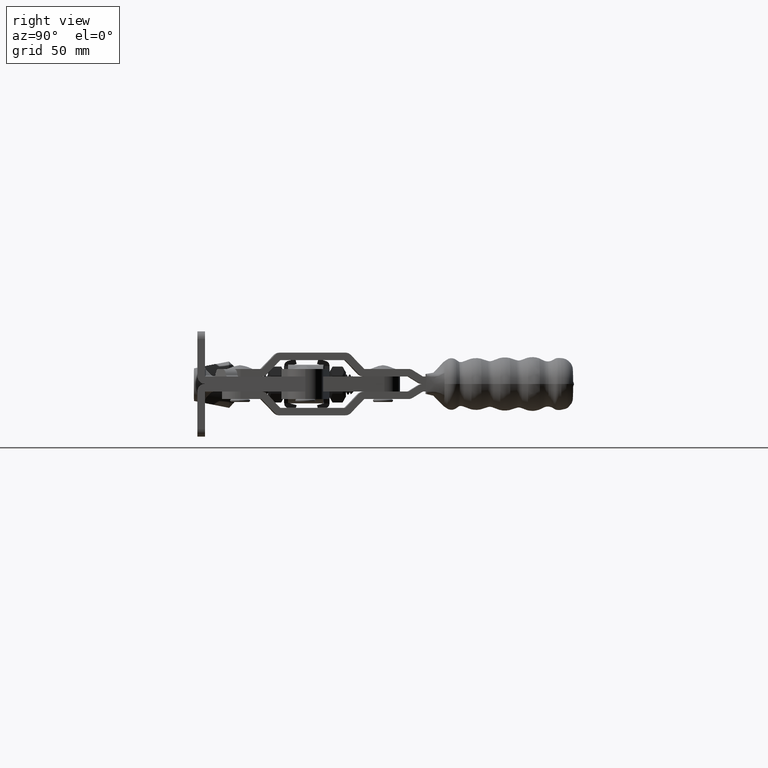
[diagram: clean part render]
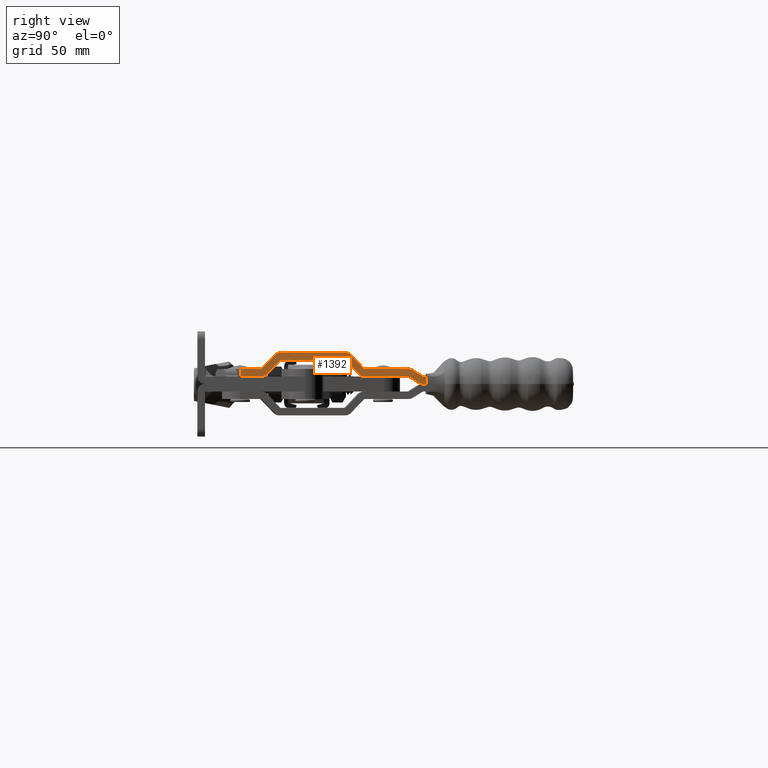
[diagram: same view with one face highlighted and labeled with its STEP entity id]
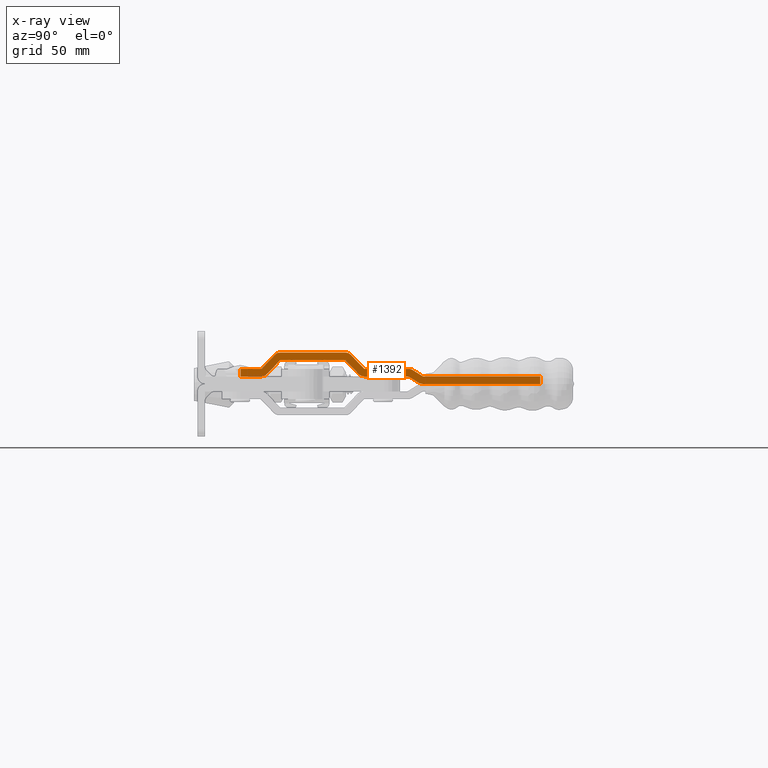
[diagram: x-ray of the same camera — body ghosted, the highlighted face saturated]
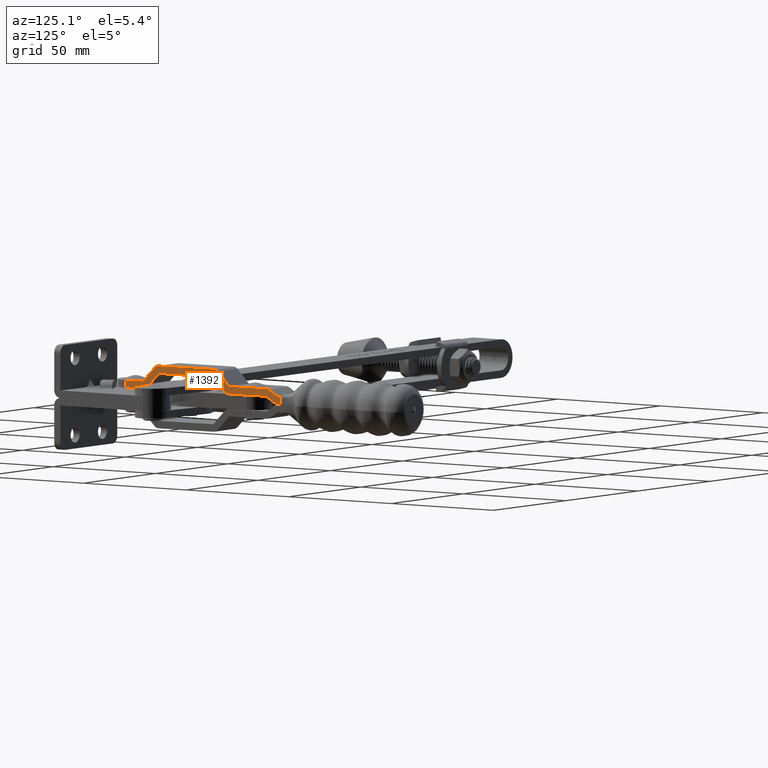
[diagram: same view with one face highlighted and labeled with its STEP entity id]
A machine part, right view. The second image highlights one B-rep face of the part: STEP entity #1392.
The next image is the same camera in x-ray: the body ghosted, the highlighted face saturated — about 0% of this face is hidden behind the body in this view.
A second angle (auxiliary view) of the same face is appended — the face is thin or edge-on in the first view.
In plain terms, the highlighted planar face has unit normal (-0.9995, -0.0328, 0).
Its self-contained STEP definition (entity closure, byte-faithful):
#901 = EDGE_CURVE ( 'NONE', #1027, #1032, #37887, .T. ) ;
#907 = VERTEX_POINT ( 'NONE', #37838 ) ;
#914 = VERTEX_POINT ( 'NONE', #37873 ) ;
#919 = EDGE_CURVE ( 'NONE', #1032, #907, #37918, .T. ) ;
#924 = VERTEX_POINT ( 'NONE', #37919 ) ;
#934 = EDGE_CURVE ( 'NONE', #924, #914, #37901, .T. ) ;
#936 = EDGE_CURVE ( 'NONE', #907, #924, #37902, .T. ) ;
#939 = VERTEX_POINT ( 'NONE', #37891 ) ;
#940 = EDGE_CURVE ( 'NONE', #914, #939, #37889, .T. ) ;
#950 = EDGE_CURVE ( 'NONE', #939, #951, #37926, .T. ) ;
#951 = VERTEX_POINT ( 'NONE', #37935 ) ;
#967 = EDGE_CURVE ( 'NONE', #951, #968, #37953, .T. ) ;
#968 = VERTEX_POINT ( 'NONE', #37963 ) ;
#971 = EDGE_CURVE ( 'NONE', #968, #987, #38002, .T. ) ;
#987 = VERTEX_POINT ( 'NONE', #38003 ) ;
#991 = VERTEX_POINT ( 'NONE', #38042 ) ;
#993 = EDGE_CURVE ( 'NONE', #1002, #991, #38038, .T. ) ;
#994 = EDGE_CURVE ( 'NONE', #987, #1002, #38033, .T. ) ;
#1002 = VERTEX_POINT ( 'NONE', #38076 ) ;
#1021 = VERTEX_POINT ( 'NONE', #38053 ) ;
#1023 = VERTEX_POINT ( 'NONE', #38087 ) ;
#1027 = VERTEX_POINT ( 'NONE', #38090 ) ;
#1032 = VERTEX_POINT ( 'NONE', #38127 ) ;
#1120 = VERTEX_POINT ( 'NONE', #38347 ) ;
#1163 = EDGE_CURVE ( 'NONE', #1021, #1120, #38406, .T. ) ;
#1175 = EDGE_CURVE ( 'NONE', #1181, #1177, #38425, .T. ) ;
#1177 = VERTEX_POINT ( 'NONE', #38433 ) ;
#1181 = VERTEX_POINT ( 'NONE', #38466 ) ;
#1199 = EDGE_CURVE ( 'NONE', #1177, #1215, #38487, .T. ) ;
#1215 = VERTEX_POINT ( 'NONE', #38512 ) ;
#1238 = EDGE_CURVE ( 'NONE', #1263, #1273, #38568, .T. ) ;
#1259 = EDGE_CURVE ( 'NONE', #1215, #1263, #38590, .T. ) ;
#1263 = VERTEX_POINT ( 'NONE', #38585 ) ;
#1273 = VERTEX_POINT ( 'NONE', #38231 ) ;
#1274 = EDGE_CURVE ( 'NONE', #1273, #1288, #38640, .T. ) ;
#1283 = EDGE_CURVE ( 'NONE', #1288, #1286, #38636, .T. ) ;
#1286 = VERTEX_POINT ( 'NONE', #38618 ) ;
#1288 = VERTEX_POINT ( 'NONE', #38669 ) ;
#1304 = EDGE_CURVE ( 'NONE', #1286, #1315, #38695, .T. ) ;
#1315 = VERTEX_POINT ( 'NONE', #38704 ) ;
#1370 = EDGE_LOOP ( 'NONE', ( #1378, #1379, #1383, #1389, #1373, #1384, #1393, #1374, #1402, #1390, #1397, #1385, #1387, #1394, #1381, #1386, #1388, #1396, #1410, #1382, #1417, #1415 ) ) ;
#1371 = EDGE_CURVE ( 'NONE', #1021, #991, #41312, .T. ) ;
#1373 = ORIENTED_EDGE ( 'NONE', *, *, #971, .F. ) ;
#1374 = ORIENTED_EDGE ( 'NONE', *, *, #940, .F. ) ;
#1378 = ORIENTED_EDGE ( 'NONE', *, *, #1163, .F. ) ;
#1379 = ORIENTED_EDGE ( 'NONE', *, *, #1371, .T. ) ;
#1381 = ORIENTED_EDGE ( 'NONE', *, *, #1283, .F. ) ;
#1382 = ORIENTED_EDGE ( 'NONE', *, *, #1175, .F. ) ;
#1383 = ORIENTED_EDGE ( 'NONE', *, *, #993, .F. ) ;
#1384 = ORIENTED_EDGE ( 'NONE', *, *, #967, .F. ) ;
#1385 = ORIENTED_EDGE ( 'NONE', *, *, #901, .F. ) ;
#1386 = ORIENTED_EDGE ( 'NONE', *, *, #1274, .F. ) ;
#1387 = ORIENTED_EDGE ( 'NONE', *, *, #1399, .T. ) ;
#1388 = ORIENTED_EDGE ( 'NONE', *, *, #1238, .F. ) ;
#1389 = ORIENTED_EDGE ( 'NONE', *, *, #994, .F. ) ;
#1390 = ORIENTED_EDGE ( 'NONE', *, *, #936, .F. ) ;
#1392 = ADVANCED_FACE ( 'NONE', ( #41298 ), #41301, .F. ) ;
#1393 = ORIENTED_EDGE ( 'NONE', *, *, #950, .F. ) ;
#1394 = ORIENTED_EDGE ( 'NONE', *, *, #1304, .F. ) ;
#1396 = ORIENTED_EDGE ( 'NONE', *, *, #1259, .F. ) ;
#1397 = ORIENTED_EDGE ( 'NONE', *, *, #919, .F. ) ;
#1399 = EDGE_CURVE ( 'NONE', #1027, #1315, #41296, .T. ) ;
#1402 = ORIENTED_EDGE ( 'NONE', *, *, #934, .F. ) ;
#1410 = ORIENTED_EDGE ( 'NONE', *, *, #1199, .F. ) ;
#1415 = ORIENTED_EDGE ( 'NONE', *, *, #1510, .F. ) ;
#1417 = ORIENTED_EDGE ( 'NONE', *, *, #1512, .F. ) ;
#1510 = EDGE_CURVE ( 'NONE', #1120, #1023, #41417, .T. ) ;
#1512 = EDGE_CURVE ( 'NONE', #1023, #1181, #41470, .T. ) ;
#37838 = CARTESIAN_POINT ( 'NONE',  ( -20.83684547783263600, 8.572825885586413000, 0.0000000000000000000 ) ) ;
#37873 = CARTESIAN_POINT ( 'NONE',  ( -49.00309254715074300, 9.497577030782073500, 0.0000000000000000000 ) ) ;
#37884 = DIRECTION ( 'NONE',  ( -1.000000000000000000, -1.119176436114069100E-016, 0.0000000000000000000 ) ) ;
#37885 = VECTOR ( 'NONE', #37884, 1000.000000000000000 ) ;
#37886 = CARTESIAN_POINT ( 'NONE',  ( 7.217535314048845300E-033, 3.000924289535041200, 0.0000000000000000000 ) ) ;
#37887 = LINE ( 'NONE', #37886, #37885 ) ;
#37888 = AXIS2_PLACEMENT_3D ( 'NONE', #37895, #37897, #37947 ) ;
#37889 = CIRCLE ( 'NONE', #37941, 2.999612963277914300 ) ;
#37891 = CARTESIAN_POINT ( 'NONE',  ( -51.16933961646884700, 8.572825885586413000, 0.0000000000000000000 ) ) ;
#37892 = DIRECTION ( 'NONE',  ( -1.000000000000000000, 2.001604010742470000E-016, -0.0000000000000000000 ) ) ;
#37893 = VECTOR ( 'NONE', #37892, 1000.000000000000000 ) ;
#37894 = CARTESIAN_POINT ( 'NONE',  ( -49.00309254715074300, 9.497577030782075300, 0.0000000000000000000 ) ) ;
#37895 = CARTESIAN_POINT ( 'NONE',  ( -23.00309254715074300, 6.497964067504161000, 0.0000000000000000000 ) ) ;
#37897 = DIRECTION ( 'NONE',  ( 0.0000000000000000000, 0.0000000000000000000, 1.000000000000000000 ) ) ;
#37901 = LINE ( 'NONE', #37894, #37893 ) ;
#37902 = CIRCLE ( 'NONE', #37888, 2.999612963277907600 ) ;
#37909 = DIRECTION ( 'NONE',  ( -0.6917098450644407800, 0.7221755259221452900, 0.0000000000000000000 ) ) ;
#37910 = VECTOR ( 'NONE', #37909, 1000.000000000000100 ) ;
#37911 = CARTESIAN_POINT ( 'NONE',  ( -15.50000000000000000, 3.000924289535039400, 0.0000000000000000000 ) ) ;
#37918 = LINE ( 'NONE', #37911, #37910 ) ;
#37919 = CARTESIAN_POINT ( 'NONE',  ( -23.00309254715074300, 9.497577030782069900, 0.0000000000000000000 ) ) ;
#37923 = DIRECTION ( 'NONE',  ( -0.6917098450644407800, -0.7221755259221452900, -0.0000000000000000000 ) ) ;
#37924 = VECTOR ( 'NONE', #37923, 1000.000000000000100 ) ;
#37925 = CARTESIAN_POINT ( 'NONE',  ( -56.50618509430148600, 3.000924289535039400, 0.0000000000000000000 ) ) ;
#37926 = LINE ( 'NONE', #37925, #37924 ) ;
#37935 = CARTESIAN_POINT ( 'NONE',  ( -56.50618509430148600, 3.000924289535039400, 0.0000000000000000000 ) ) ;
#37938 = DIRECTION ( 'NONE',  ( -1.000000000000000000, 0.0000000000000000000, 0.0000000000000000000 ) ) ;
#37939 = DIRECTION ( 'NONE',  ( 0.0000000000000000000, 0.0000000000000000000, 1.000000000000000000 ) ) ;
#37940 = CARTESIAN_POINT ( 'NONE',  ( -49.00309254715074300, 6.497964067504159200, 0.0000000000000000000 ) ) ;
#37941 = AXIS2_PLACEMENT_3D ( 'NONE', #37940, #37939, #37938 ) ;
#37947 = DIRECTION ( 'NONE',  ( 1.000000000000000000, 0.0000000000000000000, 0.0000000000000000000 ) ) ;
#37953 = LINE ( 'NONE', #38013, #38012 ) ;
#37963 = CARTESIAN_POINT ( 'NONE',  ( -74.20618509430148900, 3.000924289535041600, 0.0000000000000000000 ) ) ;
#37994 = DIRECTION ( 'NONE',  ( 1.000000000000000000, 0.0000000000000000000, 0.0000000000000000000 ) ) ;
#37995 = DIRECTION ( 'NONE',  ( 0.0000000000000000000, 0.0000000000000000000, 1.000000000000000000 ) ) ;
#37996 = CARTESIAN_POINT ( 'NONE',  ( -74.20618509430148900, -2.167624834490816500E-015, 0.0000000000000000000 ) ) ;
#37997 = AXIS2_PLACEMENT_3D ( 'NONE', #37996, #37995, #37994 ) ;
#38002 = CIRCLE ( 'NONE', #37997, 3.000924289535050500 ) ;
#38003 = CARTESIAN_POINT ( 'NONE',  ( -75.78606384492944400, 2.551378005085811500, 0.0000000000000000000 ) ) ;
#38011 = DIRECTION ( 'NONE',  ( -1.000000000000000000, 7.350523203291552500E-017, 0.0000000000000000000 ) ) ;
#38012 = VECTOR ( 'NONE', #38011, 1000.000000000000000 ) ;
#38013 = CARTESIAN_POINT ( 'NONE',  ( -56.50618509430148600, 3.000924289535039400, 0.0000000000000000000 ) ) ;
#38030 = DIRECTION ( 'NONE',  ( -0.8501973921778339700, -0.5264640484724577600, -0.0000000000000000000 ) ) ;
#38031 = VECTOR ( 'NONE', #38030, 1000.000000000000000 ) ;
#38032 = CARTESIAN_POINT ( 'NONE',  ( -79.90622679722557100, 6.734689181043322900E-005, 0.0000000000000000000 ) ) ;
#38033 = LINE ( 'NONE', #38032, #38031 ) ;
#38035 = DIRECTION ( 'NONE',  ( -1.000000000000000000, -1.209041210193409900E-016, 0.0000000000000000000 ) ) ;
#38036 = VECTOR ( 'NONE', #38035, 1000.000000000000000 ) ;
#38037 = CARTESIAN_POINT ( 'NONE',  ( -79.90622679722557100, 6.734689181043322900E-005, 0.0000000000000000000 ) ) ;
#38038 = LINE ( 'NONE', #38037, #38036 ) ;
#38042 = CARTESIAN_POINT ( 'NONE',  ( -126.7000000000000000, 6.734689180477567200E-005, 0.0000000000000000000 ) ) ;
#38053 = CARTESIAN_POINT ( 'NONE',  ( -126.7000000000000000, -2.999742349729965800, 0.0000000000000000000 ) ) ;
#38076 = CARTESIAN_POINT ( 'NONE',  ( -79.90622679722557100, 6.734689181043322900E-005, 0.0000000000000000000 ) ) ;
#38087 = CARTESIAN_POINT ( 'NONE',  ( -78.32752143033073400, -2.550726172874791000, 0.0000000000000000000 ) ) ;
#38090 = CARTESIAN_POINT ( 'NONE',  ( -7.200000000000000200, 3.000924289535040300, 0.0000000000000000000 ) ) ;
#38127 = CARTESIAN_POINT ( 'NONE',  ( -15.50000000000000000, 3.000924289535039400, 0.0000000000000000000 ) ) ;
#38231 = CARTESIAN_POINT ( 'NONE',  ( -23.00309254715074300, 6.497964067504161000, 0.0000000000000000000 ) ) ;
#38347 = CARTESIAN_POINT ( 'NONE',  ( -79.90622679722557100, -2.999742349729949800, 0.0000000000000000000 ) ) ;
#38405 = CARTESIAN_POINT ( 'NONE',  ( -79.90622679722557100, -2.999742349729959600, 0.0000000000000000000 ) ) ;
#38406 = LINE ( 'NONE', #38405, #38449 ) ;
#38425 = LINE ( 'NONE', #38473, #38472 ) ;
#38433 = CARTESIAN_POINT ( 'NONE',  ( -56.50618509430148600, -3.035766082959412400E-015, 0.0000000000000000000 ) ) ;
#38448 = DIRECTION ( 'NONE',  ( 1.000000000000000000, 1.285128542109495900E-016, -0.0000000000000000000 ) ) ;
#38449 = VECTOR ( 'NONE', #38448, 1000.000000000000000 ) ;
#38466 = CARTESIAN_POINT ( 'NONE',  ( -74.20618509430148900, -2.167624834490816500E-015, 0.0000000000000000000 ) ) ;
#38471 = DIRECTION ( 'NONE',  ( 1.000000000000000000, 2.445770387084797600E-017, -0.0000000000000000000 ) ) ;
#38472 = VECTOR ( 'NONE', #38471, 1000.000000000000000 ) ;
#38473 = CARTESIAN_POINT ( 'NONE',  ( -56.50618509430148600, -1.734723475976807100E-015, 0.0000000000000000000 ) ) ;
#38477 = DIRECTION ( 'NONE',  ( -1.000000000000000000, 0.0000000000000000000, 0.0000000000000000000 ) ) ;
#38478 = DIRECTION ( 'NONE',  ( 0.0000000000000000000, 0.0000000000000000000, 1.000000000000000000 ) ) ;
#38479 = CARTESIAN_POINT ( 'NONE',  ( -56.50618509430148600, 3.000924289535039400, 0.0000000000000000000 ) ) ;
#38480 = AXIS2_PLACEMENT_3D ( 'NONE', #38479, #38478, #38477 ) ;
#38487 = CIRCLE ( 'NONE', #38480, 3.000924289535043900 ) ;
#38512 = CARTESIAN_POINT ( 'NONE',  ( -54.33863823649053200, 0.9255237954820796400, 0.0000000000000000000 ) ) ;
#38561 = DIRECTION ( 'NONE',  ( 1.000000000000000000, 6.672013369141566700E-017, -0.0000000000000000000 ) ) ;
#38562 = VECTOR ( 'NONE', #38561, 1000.000000000000000 ) ;
#38567 = CARTESIAN_POINT ( 'NONE',  ( -23.00309254715074300, 6.497964067504161000, 0.0000000000000000000 ) ) ;
#38568 = LINE ( 'NONE', #38567, #38562 ) ;
#38585 = CARTESIAN_POINT ( 'NONE',  ( -49.00309254715074300, 6.497964067504159200, 0.0000000000000000000 ) ) ;
#38587 = DIRECTION ( 'NONE',  ( 0.6915870891146401700, 0.7222930832909441000, -0.0000000000000000000 ) ) ;
#38588 = VECTOR ( 'NONE', #38587, 1000.000000000000100 ) ;
#38589 = CARTESIAN_POINT ( 'NONE',  ( -49.00309254715074300, 6.497964067504159200, 0.0000000000000000000 ) ) ;
#38590 = LINE ( 'NONE', #38589, #38588 ) ;
#38614 = DIRECTION ( 'NONE',  ( 1.000000000000000000, 0.0000000000000000000, 0.0000000000000000000 ) ) ;
#38615 = DIRECTION ( 'NONE',  ( 0.0000000000000000000, 0.0000000000000000000, 1.000000000000000000 ) ) ;
#38616 = CARTESIAN_POINT ( 'NONE',  ( -15.50000000000000000, 3.000924289535039400, 0.0000000000000000000 ) ) ;
#38618 = CARTESIAN_POINT ( 'NONE',  ( -15.50000000000000000, -1.734723475976807100E-015, 0.0000000000000000000 ) ) ;
#38622 = AXIS2_PLACEMENT_3D ( 'NONE', #38616, #38615, #38614 ) ;
#38636 = CIRCLE ( 'NONE', #38622, 3.000924289535042100 ) ;
#38637 = DIRECTION ( 'NONE',  ( 0.6915870891146400600, -0.7222930832909442200, 0.0000000000000000000 ) ) ;
#38638 = VECTOR ( 'NONE', #38637, 1000.000000000000100 ) ;
#38639 = CARTESIAN_POINT ( 'NONE',  ( -23.00309254715074300, 6.497964067504161000, 0.0000000000000000000 ) ) ;
#38640 = LINE ( 'NONE', #38639, #38638 ) ;
#38642 = CARTESIAN_POINT ( 'NONE',  ( 0.0000000000000000000, 0.0000000000000000000, 0.0000000000000000000 ) ) ;
#38669 = CARTESIAN_POINT ( 'NONE',  ( -17.66754685781095400, 0.9255237954820818600, 0.0000000000000000000 ) ) ;
#38692 = DIRECTION ( 'NONE',  ( 1.000000000000000000, 1.119176436114069100E-016, -0.0000000000000000000 ) ) ;
#38693 = VECTOR ( 'NONE', #38692, 1000.000000000000000 ) ;
#38695 = LINE ( 'NONE', #38642, #38693 ) ;
#38704 = CARTESIAN_POINT ( 'NONE',  ( -7.200000000000000200, -8.058070340021297200E-016, 0.0000000000000000000 ) ) ;
#41287 = DIRECTION ( 'NONE',  ( -2.405104100499356500E-033, -1.000000000000000000, 0.0000000000000000000 ) ) ;
#41288 = VECTOR ( 'NONE', #41287, 1000.000000000000000 ) ;
#41289 = CARTESIAN_POINT ( 'NONE',  ( -7.199999999999998400, 6.497964067504161000, 0.0000000000000000000 ) ) ;
#41292 = DIRECTION ( 'NONE',  ( 1.000000000000000000, 0.0000000000000000000, -0.0000000000000000000 ) ) ;
#41293 = DIRECTION ( 'NONE',  ( 0.0000000000000000000, 0.0000000000000000000, 1.000000000000000000 ) ) ;
#41294 = CARTESIAN_POINT ( 'NONE',  ( -23.00309254715074300, 6.497964067504161000, 0.0000000000000000000 ) ) ;
#41296 = LINE ( 'NONE', #41289, #41288 ) ;
#41298 = FACE_OUTER_BOUND ( 'NONE', #1370, .T. ) ;
#41300 = DIRECTION ( 'NONE',  ( -0.0000000000000000000, 1.000000000000000000, -0.0000000000000000000 ) ) ;
#41301 = PLANE ( 'NONE',  #41315 ) ;
#41310 = VECTOR ( 'NONE', #41300, 1000.000000000000000 ) ;
#41311 = CARTESIAN_POINT ( 'NONE',  ( -126.7000000000000000, 6.497964067504161000, 0.0000000000000000000 ) ) ;
#41312 = LINE ( 'NONE', #41311, #41310 ) ;
#41315 = AXIS2_PLACEMENT_3D ( 'NONE', #41294, #41293, #41292 ) ;
#41382 = AXIS2_PLACEMENT_3D ( 'NONE', #41430, #41466, #41465 ) ;
#41417 = CIRCLE ( 'NONE', #41382, 2.999809696621766400 ) ;
#41430 = CARTESIAN_POINT ( 'NONE',  ( -79.90622679722557100, 6.734689181043322900E-005, 0.0000000000000000000 ) ) ;
#41461 = DIRECTION ( 'NONE',  ( 0.8503184460798268700, 0.5262685058564577900, -0.0000000000000000000 ) ) ;
#41462 = VECTOR ( 'NONE', #41461, 1000.000000000000000 ) ;
#41465 = DIRECTION ( 'NONE',  ( 1.000000000000000000, 0.0000000000000000000, 0.0000000000000000000 ) ) ;
#41466 = DIRECTION ( 'NONE',  ( 0.0000000000000000000, 0.0000000000000000000, 1.000000000000000000 ) ) ;
#41469 = CARTESIAN_POINT ( 'NONE',  ( -74.20618509430148900, -2.167624834490816500E-015, 0.0000000000000000000 ) ) ;
#41470 = LINE ( 'NONE', #41469, #41462 ) ;